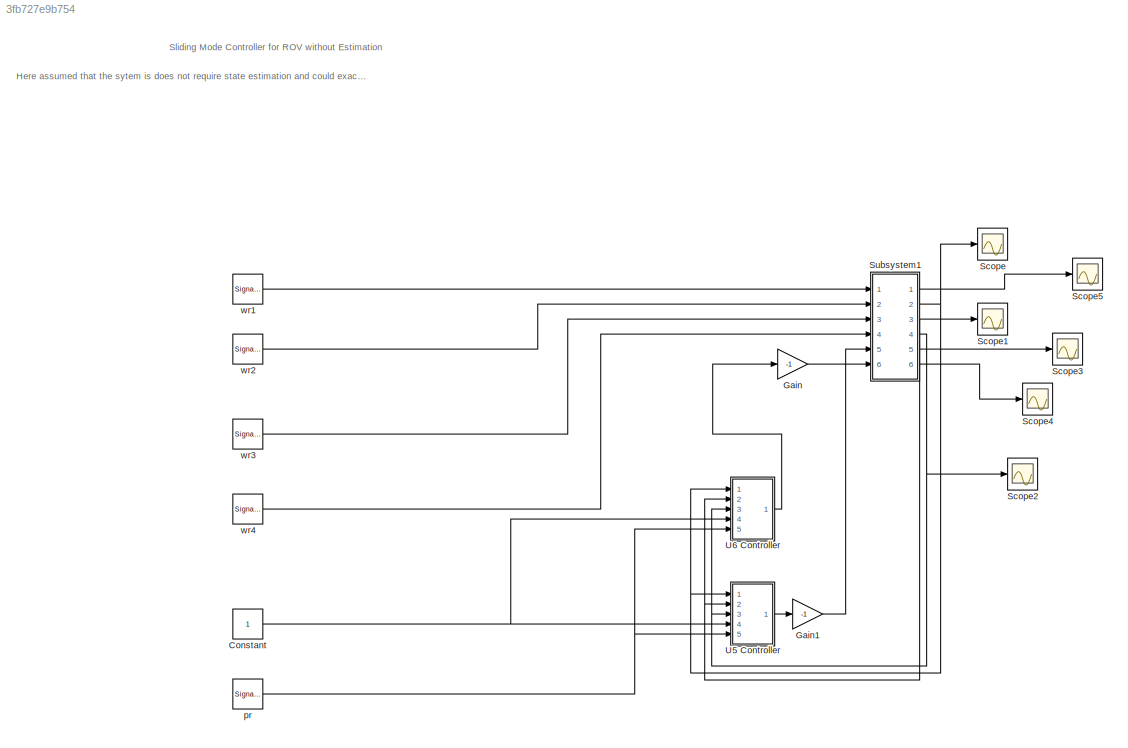
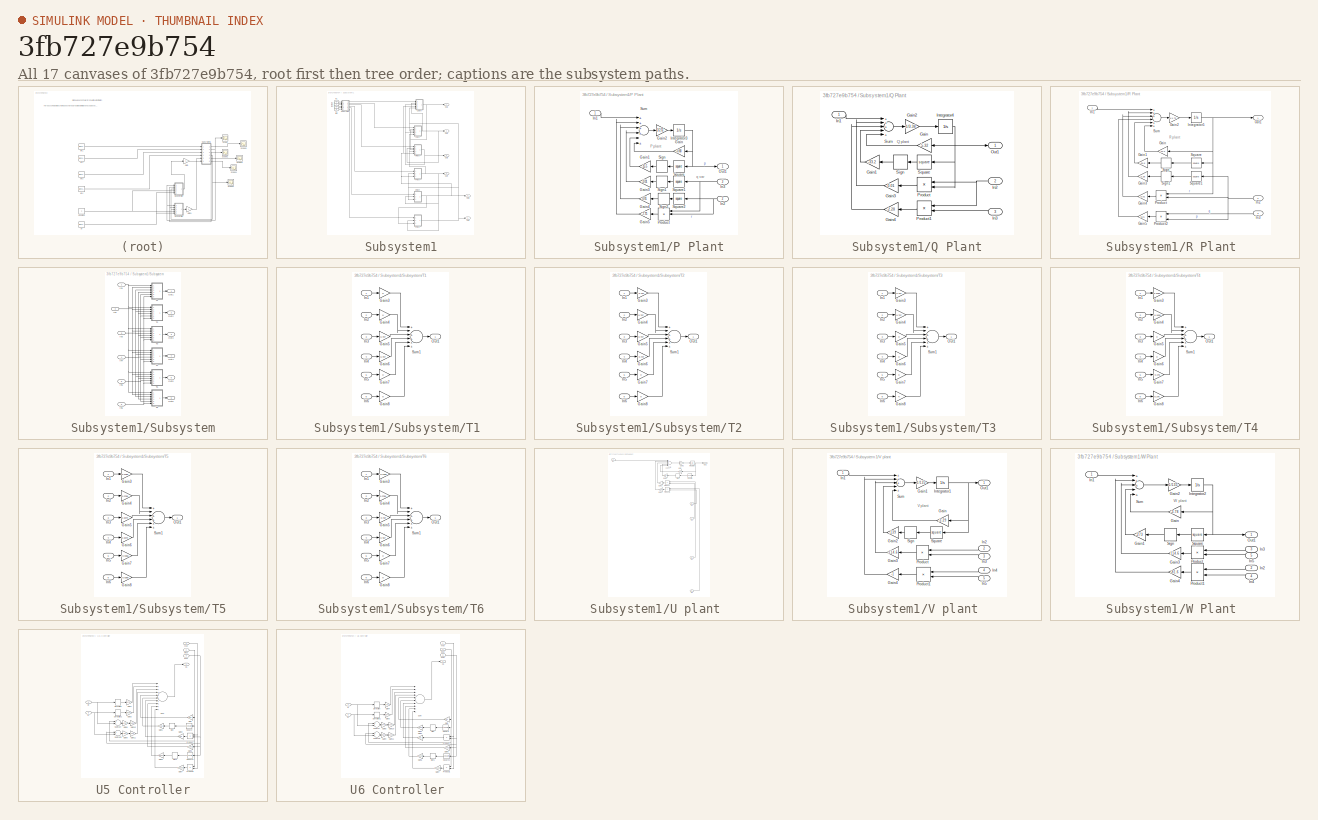
[diagram: thumbnail index - all 17 canvases of the model, root first then tree order]
MODEL slx_3fb727e9b754
KIND model
CONFIG AbsTol = auto
CONFIG EnableMultiTasking = off
CONFIG FixedStep = auto
CONFIG MaxStep = auto
CONFIG MinStep = auto
CONFIG RelTol = 1e-1
CONFIG SampleTimeConstraint = Unconstrained
CONFIG Solver = VariableStepAuto
CONFIG SolverName = VariableStepAuto
CONFIG StartTime = 0.0
CONFIG StopTime = 150
BLOCK [Constant] Constant
BLOCK [Gain] Gain
  Gain = -1
  OutDataTypeStr = Inherit: Inherit via internal rule
  ParamDataTypeStr = Inherit: Inherit via internal rule
  SaturateOnIntegerOverflow = off
BLOCK [Gain] Gain1
  Gain = -1
  OutDataTypeStr = Inherit: Inherit via internal rule
  ParamDataTypeStr = Inherit: Inherit via internal rule
  SaturateOnIntegerOverflow = off
BLOCK [Scope] Scope
  Floating = off
  NumInputPorts = 1
  Ports = [1]
  ScopeSpecificationString = Simulink.scopes.TimeScopeBlockCfg('CurrentConfiguration', extmgr.ConfigurationSet(extmgr.Configuration('Core','General UI',true),extmgr.Configuration('Core','Source UI',true),extmgr.Configuration('Sources','WiredSimulink',true,'DataLoggingVariableName','ScopeData6'),extmgr.Configuration('Visuals','Time Domain',true,'SerializedDisplays',{struct('MinYLimReal','-1.90002','MaxYLimReal','0.73849','YLab...<+1398ch>
BLOCK [Scope] Scope1
  Floating = off
  NumInputPorts = 1
  Ports = [1]
  ScopeSpecificationString = Simulink.scopes.TimeScopeBlockCfg('CurrentConfiguration', extmgr.ConfigurationSet(extmgr.Configuration('Core','General UI',true),extmgr.Configuration('Core','Source UI',true),extmgr.Configuration('Sources','WiredSimulink',true,'DataLoggingVariableName','ScopeData7'),extmgr.Configuration('Visuals','Time Domain',true,'SerializedDisplays',{struct('MinYLimReal','-0.12485','MaxYLimReal','1.12362','YLab...<+1399ch>
BLOCK [Scope] Scope2
  Floating = off
  NumInputPorts = 1
  Ports = [1]
  ScopeSpecificationString = Simulink.scopes.TimeScopeBlockCfg('CurrentConfiguration', extmgr.ConfigurationSet(extmgr.Configuration('Core','General UI',true),extmgr.Configuration('Core','Source UI',true),extmgr.Configuration('Sources','WiredSimulink',true,'DataLoggingVariableName','ScopeData8'),extmgr.Configuration('Visuals','Time Domain',true,'SerializedDisplays',{struct('MinYLimReal','-0.70878','MaxYLimReal','0.08867','YLab...<+1398ch>
BLOCK [Scope] Scope3
  Floating = off
  NumInputPorts = 1
  Ports = [1]
  ScopeSpecificationString = Simulink.scopes.TimeScopeBlockCfg('CurrentConfiguration', extmgr.ConfigurationSet(extmgr.Configuration('Core','General UI',true),extmgr.Configuration('Core','Source UI',true),extmgr.Configuration('Sources','WiredSimulink',true,'DataLoggingVariableName','ScopeData1'),extmgr.Configuration('Visuals','Time Domain',true,'SerializedDisplays',{struct('MinYLimReal','-33.83383','MaxYLimReal','3.75931','YLa...<+1402ch>
BLOCK [Scope] Scope4
  Floating = off
  NumInputPorts = 1
  Ports = [1]
  ScopeSpecificationString = Simulink.scopes.TimeScopeBlockCfg('CurrentConfiguration', extmgr.ConfigurationSet(extmgr.Configuration('Core','General UI',true),extmgr.Configuration('Core','Source UI',true),extmgr.Configuration('Sources','WiredSimulink',true,'DataLoggingVariableName','ScopeData2'),extmgr.Configuration('Visuals','Time Domain',true,'SerializedDisplays',{struct('MinYLimReal','-2.64953','MaxYLimReal','0.29439','YLab...<+1398ch>
BLOCK [Scope] Scope5
  Floating = off
  NumInputPorts = 1
  Ports = [1]
  ScopeSpecificationString = Simulink.scopes.TimeScopeBlockCfg('CurrentConfiguration', extmgr.ConfigurationSet(extmgr.Configuration('Core','General UI',true),extmgr.Configuration('Core','Source UI',true),extmgr.Configuration('Sources','WiredSimulink',true,'DataLoggingVariableName','ScopeData3'),extmgr.Configuration('Visuals','Time Domain',true,'SerializedDisplays',{struct('MinYLimReal','-0.65002','MaxYLimReal','1.6734','YLabe...<+1394ch>
BLOCK [SubSystem] Subsystem1
  Ports = [6, 6]
  RequestExecContextInheritance = off
BLOCK [Inport] Subsystem1/In1
  IconDisplay = Port number
BLOCK [Inport] Subsystem1/In2
  IconDisplay = Port number
  Port = 2
BLOCK [Inport] Subsystem1/In3
  IconDisplay = Port number
  Port = 3
BLOCK [Inport] Subsystem1/In4
  IconDisplay = Port number
  Port = 4
BLOCK [Inport] Subsystem1/In5
  IconDisplay = Port number
  Port = 5
BLOCK [Inport] Subsystem1/In6
  IconDisplay = Port number
  Port = 6
BLOCK [Outport] Subsystem1/Out1
  IconDisplay = Port number
BLOCK [Outport] Subsystem1/Out2
  IconDisplay = Port number
  Port = 2
BLOCK [Outport] Subsystem1/Out3
  IconDisplay = Port number
  Port = 3
BLOCK [Outport] Subsystem1/Out4
  IconDisplay = Port number
  Port = 4
BLOCK [Outport] Subsystem1/Out5
  IconDisplay = Port number
  Port = 5
BLOCK [Outport] Subsystem1/Out6
  IconDisplay = Port number
  Port = 6
BLOCK [SubSystem] Subsystem1/P Plant
  Ports = [3, 1]
  RequestExecContextInheritance = off
BLOCK [Gain] Subsystem1/P Plant/Gain
  Gain = -0.68
  OutDataTypeStr = Inherit: Inherit via internal rule
  ParamDataTypeStr = Inherit: Inherit via internal rule
  SaturateOnIntegerOverflow = off
BLOCK [Gain] Subsystem1/P Plant/Gain1
  Gain = -15.5
  OutDataTypeStr = Inherit: Inherit via internal rule
  ParamDataTypeStr = Inherit: Inherit via internal rule
  SaturateOnIntegerOverflow = off
BLOCK [Gain] Subsystem1/P Plant/Gain2
  Gain = 1/2.51
  OutDataTypeStr = Inherit: Inherit via internal rule
  ParamDataTypeStr = Inherit: Inherit via internal rule
  SaturateOnIntegerOverflow = off
BLOCK [Gain] Subsystem1/P Plant/Gain3
  Gain = -0.01
  OutDataTypeStr = Inherit: Inherit via internal rule
  ParamDataTypeStr = Inherit: Inherit via internal rule
  SaturateOnIntegerOverflow = off
BLOCK [Gain] Subsystem1/P Plant/Gain4
  Gain = 0.01
  OutDataTypeStr = Inherit: Inherit via internal rule
  ParamDataTypeStr = Inherit: Inherit via internal rule
  SaturateOnIntegerOverflow = off
BLOCK [Gain] Subsystem1/P Plant/Gain5
  Gain = -7.75
  OutDataTypeStr = Inherit: Inherit via internal rule
  ParamDataTypeStr = Inherit: Inherit via internal rule
  SaturateOnIntegerOverflow = off
BLOCK [Inport] Subsystem1/P Plant/In1
  IconDisplay = Port number
BLOCK [Inport] Subsystem1/P Plant/In2
  IconDisplay = Port number
  Port = 2
BLOCK [Inport] Subsystem1/P Plant/In3 
  IconDisplay = Port number
  Port = 3
BLOCK [Integrator] Subsystem1/P Plant/Integrator3
  Ports = [1, 1]
BLOCK [Outport] Subsystem1/P Plant/Out1
  IconDisplay = Port number
BLOCK [Product] Subsystem1/P Plant/Product
  InputSameDT = off
  Inputs = 3
  OutDataTypeStr = Inherit: Inherit via internal rule
  Ports = [3, 1]
  RndMeth = Floor
  SaturateOnIntegerOverflow = off
BLOCK [Signum] Subsystem1/P Plant/Sign
BLOCK [Signum] Subsystem1/P Plant/Sign1
BLOCK [Signum] Subsystem1/P Plant/Sign2
BLOCK [Math] Subsystem1/P Plant/Square
  Operator = square
  Ports = [1, 1]
BLOCK [Math] Subsystem1/P Plant/Square1
  Operator = square
  Ports = [1, 1]
BLOCK [Math] Subsystem1/P Plant/Square2
  Operator = square
  Ports = [1, 1]
BLOCK [Sum] Subsystem1/P Plant/Sum
  InputSameDT = off
  Inputs = ++++|++
  OutDataTypeStr = Inherit: Inherit via internal rule
  Ports = [6, 1]
  SaturateOnIntegerOverflow = off
BLOCK [SubSystem] Subsystem1/Q Plant
  Ports = [3, 1]
  RequestExecContextInheritance = off
BLOCK [Gain] Subsystem1/Q Plant/Gain
  Gain = -5.32
  OutDataTypeStr = Inherit: Inherit via internal rule
  ParamDataTypeStr = Inherit: Inherit via internal rule
  SaturateOnIntegerOverflow = off
BLOCK [Gain] Subsystem1/Q Plant/Gain1
  Gain = -33.2
  OutDataTypeStr = Inherit: Inherit via internal rule
  ParamDataTypeStr = Inherit: Inherit via internal rule
  SaturateOnIntegerOverflow = off
BLOCK [Gain] Subsystem1/Q Plant/Gain2
  Gain = 1/3.38
  OutDataTypeStr = Inherit: Inherit via internal rule
  ParamDataTypeStr = Inherit: Inherit via internal rule
  SaturateOnIntegerOverflow = off
BLOCK [Gain] Subsystem1/Q Plant/Gain3
  Gain = 0.01
  OutDataTypeStr = Inherit: Inherit via internal rule
  ParamDataTypeStr = Inherit: Inherit via internal rule
  SaturateOnIntegerOverflow = off
BLOCK [Gain] Subsystem1/Q Plant/Gain4
  Gain = -2.28
  OutDataTypeStr = Inherit: Inherit via internal rule
  ParamDataTypeStr = Inherit: Inherit via internal rule
  SaturateOnIntegerOverflow = off
BLOCK [Inport] Subsystem1/Q Plant/In1
  IconDisplay = Port number
BLOCK [Inport] Subsystem1/Q Plant/In2
  IconDisplay = Port number
  Port = 2
BLOCK [Inport] Subsystem1/Q Plant/In3
  IconDisplay = Port number
  Port = 3
BLOCK [Integrator] Subsystem1/Q Plant/Integrator4
  Ports = [1, 1]
BLOCK [Outport] Subsystem1/Q Plant/Out1
  IconDisplay = Port number
BLOCK [Product] Subsystem1/Q Plant/Product
  InputSameDT = off
  OutDataTypeStr = Inherit: Inherit via internal rule
  Ports = [2, 1]
  RndMeth = Floor
  SaturateOnIntegerOverflow = off
BLOCK [Product] Subsystem1/Q Plant/Product1
  InputSameDT = off
  OutDataTypeStr = Inherit: Inherit via internal rule
  Ports = [2, 1]
  RndMeth = Floor
  SaturateOnIntegerOverflow = off
BLOCK [Signum] Subsystem1/Q Plant/Sign
BLOCK [Math] Subsystem1/Q Plant/Square
  Operator = square
  Ports = [1, 1]
BLOCK [Sum] Subsystem1/Q Plant/Sum
  InputSameDT = off
  Inputs = +++|++
  OutDataTypeStr = Inherit: Inherit via internal rule
  Ports = [5, 1]
  SaturateOnIntegerOverflow = off
BLOCK [SubSystem] Subsystem1/R Plant 
  Ports = [3, 1]
  RequestExecContextInheritance = off
BLOCK [Gain] Subsystem1/R Plant /Gain
  Gain = -24.2
  OutDataTypeStr = Inherit: Inherit via internal rule
  ParamDataTypeStr = Inherit: Inherit via internal rule
  SaturateOnIntegerOverflow = off
BLOCK [Gain] Subsystem1/R Plant /Gain1
  Gain = -53.6
  OutDataTypeStr = Inherit: Inherit via internal rule
  ParamDataTypeStr = Inherit: Inherit via internal rule
  SaturateOnIntegerOverflow = off
BLOCK [Gain] Subsystem1/R Plant /Gain2
  Gain = 1/1.73
  OutDataTypeStr = Inherit: Inherit via internal rule
  ParamDataTypeStr = Inherit: Inherit via internal rule
  SaturateOnIntegerOverflow = off
BLOCK [Gain] Subsystem1/R Plant /Gain3
  Gain = -3.38
  OutDataTypeStr = Inherit: Inherit via internal rule
  ParamDataTypeStr = Inherit: Inherit via internal rule
  SaturateOnIntegerOverflow = off
BLOCK [Gain] Subsystem1/R Plant /Gain4
  Gain = -0.01
  OutDataTypeStr = Inherit: Inherit via internal rule
  ParamDataTypeStr = Inherit: Inherit via internal rule
  SaturateOnIntegerOverflow = off
BLOCK [Gain] Subsystem1/R Plant /Gain5
  Gain = 13.5
  OutDataTypeStr = Inherit: Inherit via internal rule
  ParamDataTypeStr = Inherit: Inherit via internal rule
  SaturateOnIntegerOverflow = off
BLOCK [Inport] Subsystem1/R Plant /In1
  IconDisplay = Port number
BLOCK [Inport] Subsystem1/R Plant /In2
  IconDisplay = Port number
  Port = 2
BLOCK [Inport] Subsystem1/R Plant /In3
  IconDisplay = Port number
  Port = 3
BLOCK [Integrator] Subsystem1/R Plant /Integrator5
  Ports = [1, 1]
BLOCK [Outport] Subsystem1/R Plant /Out1
  IconDisplay = Port number
BLOCK [Product] Subsystem1/R Plant /Product
  InputSameDT = off
  OutDataTypeStr = Inherit: Inherit via internal rule
  Ports = [2, 1]
  RndMeth = Floor
  SaturateOnIntegerOverflow = off
BLOCK [Product] Subsystem1/R Plant /Product2
  InputSameDT = off
  Inputs = 3
  OutDataTypeStr = Inherit: Inherit via internal rule
  Ports = [3, 1]
  RndMeth = Floor
  SaturateOnIntegerOverflow = off
BLOCK [Signum] Subsystem1/R Plant /Sign
BLOCK [Signum] Subsystem1/R Plant /Sign1
BLOCK [Math] Subsystem1/R Plant /Square
  Operator = square
  Ports = [1, 1]
BLOCK [Math] Subsystem1/R Plant /Square1
  Operator = square
  Ports = [1, 1]
BLOCK [Sum] Subsystem1/R Plant /Sum
  InputSameDT = off
  Inputs = +++|+++
  OutDataTypeStr = Inherit: Inherit via internal rule
  Ports = [6, 1]
  SaturateOnIntegerOverflow = off
BLOCK [SubSystem] Subsystem1/Subsystem
  Ports = [6, 6]
  RequestExecContextInheritance = off
BLOCK [Inport] Subsystem1/Subsystem/In1
  IconDisplay = Port number
BLOCK [Inport] Subsystem1/Subsystem/In2
  IconDisplay = Port number
  Port = 2
BLOCK [Inport] Subsystem1/Subsystem/In3
  IconDisplay = Port number
  Port = 3
BLOCK [Inport] Subsystem1/Subsystem/In4
  IconDisplay = Port number
  Port = 4
BLOCK [Inport] Subsystem1/Subsystem/In5
  IconDisplay = Port number
  Port = 5
BLOCK [Inport] Subsystem1/Subsystem/In6
  IconDisplay = Port number
  Port = 6
BLOCK [Outport] Subsystem1/Subsystem/Out1
  IconDisplay = Port number
BLOCK [Outport] Subsystem1/Subsystem/Out2
  IconDisplay = Port number
  Port = 2
BLOCK [Outport] Subsystem1/Subsystem/Out3
  IconDisplay = Port number
  Port = 3
BLOCK [Outport] Subsystem1/Subsystem/Out4
  IconDisplay = Port number
  Port = 4
BLOCK [Outport] Subsystem1/Subsystem/Out5
  IconDisplay = Port number
  Port = 5
BLOCK [Outport] Subsystem1/Subsystem/Out6
  IconDisplay = Port number
  Port = 6
BLOCK [SubSystem] Subsystem1/Subsystem/T1 
  Ports = [6, 1]
  RequestExecContextInheritance = off
BLOCK [Gain] Subsystem1/Subsystem/T1 /Gain3
  Gain = 0
  OutDataTypeStr = Inherit: Inherit via internal rule
  ParamDataTypeStr = Inherit: Inherit via internal rule
  SaturateOnIntegerOverflow = off
BLOCK [Gain] Subsystem1/Subsystem/T1 /Gain4
  Gain = 0
  OutDataTypeStr = Inherit: Inherit via internal rule
  ParamDataTypeStr = Inherit: Inherit via internal rule
  SaturateOnIntegerOverflow = off
BLOCK [Gain] Subsystem1/Subsystem/T1 /Gain5
  Gain = 0.707
  OutDataTypeStr = Inherit: Inherit via internal rule
  ParamDataTypeStr = Inherit: Inherit via internal rule
  SaturateOnIntegerOverflow = off
BLOCK [Gain] Subsystem1/Subsystem/T1 /Gain6
  Gain = 0.707
  OutDataTypeStr = Inherit: Inherit via internal rule
  ParamDataTypeStr = Inherit: Inherit via internal rule
  SaturateOnIntegerOverflow = off
BLOCK [Gain] Subsystem1/Subsystem/T1 /Gain7
  Gain = 0
  OutDataTypeStr = Inherit: Inherit via internal rule
  ParamDataTypeStr = Inherit: Inherit via internal rule
  SaturateOnIntegerOverflow = off
BLOCK [Gain] Subsystem1/Subsystem/T1 /Gain8
  Gain = 0
  OutDataTypeStr = Inherit: Inherit via internal rule
  ParamDataTypeStr = Inherit: Inherit via internal rule
  SaturateOnIntegerOverflow = off
BLOCK [Inport] Subsystem1/Subsystem/T1 /In1
  IconDisplay = Port number
BLOCK [Inport] Subsystem1/Subsystem/T1 /In2
  IconDisplay = Port number
  Port = 2
BLOCK [Inport] Subsystem1/Subsystem/T1 /In3
  IconDisplay = Port number
  Port = 3
BLOCK [Inport] Subsystem1/Subsystem/T1 /In4
  IconDisplay = Port number
  Port = 4
BLOCK [Inport] Subsystem1/Subsystem/T1 /In5
  IconDisplay = Port number
  Port = 5
BLOCK [Inport] Subsystem1/Subsystem/T1 /In6
  IconDisplay = Port number
  Port = 6
BLOCK [Outport] Subsystem1/Subsystem/T1 /Out1
  IconDisplay = Port number
BLOCK [Sum] Subsystem1/Subsystem/T1 /Sum1
  InputSameDT = off
  Inputs = +|+++++
  OutDataTypeStr = Inherit: Inherit via internal rule
  Ports = [6, 1]
  SaturateOnIntegerOverflow = off
BLOCK [SubSystem] Subsystem1/Subsystem/T2
  Ports = [6, 1]
  RequestExecContextInheritance = off
BLOCK [Gain] Subsystem1/Subsystem/T2/Gain3
  Gain = -0.707
  OutDataTypeStr = Inherit: Inherit via internal rule
  ParamDataTypeStr = Inherit: Inherit via internal rule
  SaturateOnIntegerOverflow = off
BLOCK [Gain] Subsystem1/Subsystem/T2/Gain4
  Gain = 0.707
  OutDataTypeStr = Inherit: Inherit via internal rule
  ParamDataTypeStr = Inherit: Inherit via internal rule
  SaturateOnIntegerOverflow = off
BLOCK [Gain] Subsystem1/Subsystem/T2/Gain5
  Gain = 0.707
  OutDataTypeStr = Inherit: Inherit via internal rule
  ParamDataTypeStr = Inherit: Inherit via internal rule
  SaturateOnIntegerOverflow = off
BLOCK [Gain] Subsystem1/Subsystem/T2/Gain6
  Gain = -0.707
  OutDataTypeStr = Inherit: Inherit via internal rule
  ParamDataTypeStr = Inherit: Inherit via internal rule
  SaturateOnIntegerOverflow = off
BLOCK [Gain] Subsystem1/Subsystem/T2/Gain7
  Gain = 0
  OutDataTypeStr = Inherit: Inherit via internal rule
  ParamDataTypeStr = Inherit: Inherit via internal rule
  SaturateOnIntegerOverflow = off
BLOCK [Gain] Subsystem1/Subsystem/T2/Gain8
  Gain = 0
  OutDataTypeStr = Inherit: Inherit via internal rule
  ParamDataTypeStr = Inherit: Inherit via internal rule
  SaturateOnIntegerOverflow = off
BLOCK [Inport] Subsystem1/Subsystem/T2/In1
  IconDisplay = Port number
BLOCK [Inport] Subsystem1/Subsystem/T2/In2
  IconDisplay = Port number
  Port = 2
BLOCK [Inport] Subsystem1/Subsystem/T2/In3
  IconDisplay = Port number
  Port = 3
BLOCK [Inport] Subsystem1/Subsystem/T2/In4
  IconDisplay = Port number
  Port = 4
BLOCK [Inport] Subsystem1/Subsystem/T2/In5
  IconDisplay = Port number
  Port = 5
BLOCK [Inport] Subsystem1/Subsystem/T2/In6
  IconDisplay = Port number
  Port = 6
BLOCK [Outport] Subsystem1/Subsystem/T2/Out1
  IconDisplay = Port number
BLOCK [Sum] Subsystem1/Subsystem/T2/Sum1
  InputSameDT = off
  Inputs = +|+++++
  OutDataTypeStr = Inherit: Inherit via internal rule
  Ports = [6, 1]
  SaturateOnIntegerOverflow = off
BLOCK [SubSystem] Subsystem1/Subsystem/T3 
  Ports = [6, 1]
  RequestExecContextInheritance = off
BLOCK [Gain] Subsystem1/Subsystem/T3 /Gain3
  Gain = 0.707
  OutDataTypeStr = Inherit: Inherit via internal rule
  ParamDataTypeStr = Inherit: Inherit via internal rule
  SaturateOnIntegerOverflow = off
BLOCK [Gain] Subsystem1/Subsystem/T3 /Gain4
  Gain = 0.707
  OutDataTypeStr = Inherit: Inherit via internal rule
  ParamDataTypeStr = Inherit: Inherit via internal rule
  SaturateOnIntegerOverflow = off
BLOCK [Gain] Subsystem1/Subsystem/T3 /Gain5
  Gain = 0
  OutDataTypeStr = Inherit: Inherit via internal rule
  ParamDataTypeStr = Inherit: Inherit via internal rule
  SaturateOnIntegerOverflow = off
BLOCK [Gain] Subsystem1/Subsystem/T3 /Gain6
  Gain = 0
  OutDataTypeStr = Inherit: Inherit via internal rule
  ParamDataTypeStr = Inherit: Inherit via internal rule
  SaturateOnIntegerOverflow = off
BLOCK [Gain] Subsystem1/Subsystem/T3 /Gain7
  OutDataTypeStr = Inherit: Inherit via internal rule
  ParamDataTypeStr = Inherit: Inherit via internal rule
  SaturateOnIntegerOverflow = off
BLOCK [Gain] Subsystem1/Subsystem/T3 /Gain8
  OutDataTypeStr = Inherit: Inherit via internal rule
  ParamDataTypeStr = Inherit: Inherit via internal rule
  SaturateOnIntegerOverflow = off
BLOCK [Inport] Subsystem1/Subsystem/T3 /In1
  IconDisplay = Port number
BLOCK [Inport] Subsystem1/Subsystem/T3 /In2
  IconDisplay = Port number
  Port = 2
BLOCK [Inport] Subsystem1/Subsystem/T3 /In3
  IconDisplay = Port number
  Port = 3
BLOCK [Inport] Subsystem1/Subsystem/T3 /In4
  IconDisplay = Port number
  Port = 4
BLOCK [Inport] Subsystem1/Subsystem/T3 /In5
  IconDisplay = Port number
  Port = 5
BLOCK [Inport] Subsystem1/Subsystem/T3 /In6
  IconDisplay = Port number
  Port = 6
BLOCK [Outport] Subsystem1/Subsystem/T3 /Out1
  IconDisplay = Port number
BLOCK [Sum] Subsystem1/Subsystem/T3 /Sum1
  InputSameDT = off
  Inputs = +|+++++
  OutDataTypeStr = Inherit: Inherit via internal rule
  Ports = [6, 1]
  SaturateOnIntegerOverflow = off
BLOCK [SubSystem] Subsystem1/Subsystem/T4
  Ports = [6, 1]
  RequestExecContextInheritance = off
BLOCK [Gain] Subsystem1/Subsystem/T4/Gain3
  Gain = 0.1099
  OutDataTypeStr = Inherit: Inherit via internal rule
  ParamDataTypeStr = Inherit: Inherit via internal rule
  SaturateOnIntegerOverflow = off
BLOCK [Gain] Subsystem1/Subsystem/T4/Gain4
  Gain = -0.1099
  OutDataTypeStr = Inherit: Inherit via internal rule
  ParamDataTypeStr = Inherit: Inherit via internal rule
  SaturateOnIntegerOverflow = off
BLOCK [Gain] Subsystem1/Subsystem/T4/Gain5
  Gain = 0
  OutDataTypeStr = Inherit: Inherit via internal rule
  ParamDataTypeStr = Inherit: Inherit via internal rule
  SaturateOnIntegerOverflow = off
BLOCK [Gain] Subsystem1/Subsystem/T4/Gain6
  Gain = 0
  OutDataTypeStr = Inherit: Inherit via internal rule
  ParamDataTypeStr = Inherit: Inherit via internal rule
  SaturateOnIntegerOverflow = off
BLOCK [Gain] Subsystem1/Subsystem/T4/Gain7
  Gain = -0.275
  OutDataTypeStr = Inherit: Inherit via internal rule
  ParamDataTypeStr = Inherit: Inherit via internal rule
  SaturateOnIntegerOverflow = off
BLOCK [Gain] Subsystem1/Subsystem/T4/Gain8
  Gain = 0.275
  OutDataTypeStr = Inherit: Inherit via internal rule
  ParamDataTypeStr = Inherit: Inherit via internal rule
  SaturateOnIntegerOverflow = off
BLOCK [Inport] Subsystem1/Subsystem/T4/In1
  IconDisplay = Port number
BLOCK [Inport] Subsystem1/Subsystem/T4/In2
  IconDisplay = Port number
  Port = 2
BLOCK [Inport] Subsystem1/Subsystem/T4/In3
  IconDisplay = Port number
  Port = 3
BLOCK [Inport] Subsystem1/Subsystem/T4/In4
  IconDisplay = Port number
  Port = 4
BLOCK [Inport] Subsystem1/Subsystem/T4/In5
  IconDisplay = Port number
  Port = 5
BLOCK [Inport] Subsystem1/Subsystem/T4/In6
  IconDisplay = Port number
  Port = 6
BLOCK [Outport] Subsystem1/Subsystem/T4/Out1
  IconDisplay = Port number
BLOCK [Sum] Subsystem1/Subsystem/T4/Sum1
  InputSameDT = off
  Inputs = +|+++++
  OutDataTypeStr = Inherit: Inherit via internal rule
  Ports = [6, 1]
  SaturateOnIntegerOverflow = off
BLOCK [SubSystem] Subsystem1/Subsystem/T5
  Ports = [6, 1]
  RequestExecContextInheritance = off
BLOCK [Gain] Subsystem1/Subsystem/T5/Gain3
  Gain = 0.2789
  OutDataTypeStr = Inherit: Inherit via internal rule
  ParamDataTypeStr = Inherit: Inherit via internal rule
  SaturateOnIntegerOverflow = off
BLOCK [Gain] Subsystem1/Subsystem/T5/Gain4
  Gain = 0.2789
  OutDataTypeStr = Inherit: Inherit via internal rule
  ParamDataTypeStr = Inherit: Inherit via internal rule
  SaturateOnIntegerOverflow = off
BLOCK [Gain] Subsystem1/Subsystem/T5/Gain5
  Gain = 0.3044
  OutDataTypeStr = Inherit: Inherit via internal rule
  ParamDataTypeStr = Inherit: Inherit via internal rule
  SaturateOnIntegerOverflow = off
BLOCK [Gain] Subsystem1/Subsystem/T5/Gain6
  Gain = 0.3044
  OutDataTypeStr = Inherit: Inherit via internal rule
  ParamDataTypeStr = Inherit: Inherit via internal rule
  SaturateOnIntegerOverflow = off
BLOCK [Gain] Subsystem1/Subsystem/T5/Gain7
  Gain = -0.0355
  OutDataTypeStr = Inherit: Inherit via internal rule
  ParamDataTypeStr = Inherit: Inherit via internal rule
  SaturateOnIntegerOverflow = off
BLOCK [Gain] Subsystem1/Subsystem/T5/Gain8
  Gain = -0.0355
  OutDataTypeStr = Inherit: Inherit via internal rule
  ParamDataTypeStr = Inherit: Inherit via internal rule
  SaturateOnIntegerOverflow = off
BLOCK [Inport] Subsystem1/Subsystem/T5/In1
  IconDisplay = Port number
BLOCK [Inport] Subsystem1/Subsystem/T5/In2
  IconDisplay = Port number
  Port = 2
BLOCK [Inport] Subsystem1/Subsystem/T5/In3
  IconDisplay = Port number
  Port = 3
BLOCK [Inport] Subsystem1/Subsystem/T5/In4
  IconDisplay = Port number
  Port = 4
BLOCK [Inport] Subsystem1/Subsystem/T5/In5
  IconDisplay = Port number
  Port = 5
BLOCK [Inport] Subsystem1/Subsystem/T5/In6
  IconDisplay = Port number
  Port = 6
BLOCK [Outport] Subsystem1/Subsystem/T5/Out1
  IconDisplay = Port number
BLOCK [Sum] Subsystem1/Subsystem/T5/Sum1
  InputSameDT = off
  Inputs = +|+++++
  OutDataTypeStr = Inherit: Inherit via internal rule
  Ports = [6, 1]
  SaturateOnIntegerOverflow = off
BLOCK [SubSystem] Subsystem1/Subsystem/T6
  Ports = [6, 1]
  RequestExecContextInheritance = off
BLOCK [Gain] Subsystem1/Subsystem/T6/Gain3
  Gain = -0.2789
  OutDataTypeStr = Inherit: Inherit via internal rule
  ParamDataTypeStr = Inherit: Inherit via internal rule
  SaturateOnIntegerOverflow = off
BLOCK [Gain] Subsystem1/Subsystem/T6/Gain4
  Gain = 0.2789
  OutDataTypeStr = Inherit: Inherit via internal rule
  ParamDataTypeStr = Inherit: Inherit via internal rule
  SaturateOnIntegerOverflow = off
BLOCK [Gain] Subsystem1/Subsystem/T6/Gain5
  Gain = -0.467
  OutDataTypeStr = Inherit: Inherit via internal rule
  ParamDataTypeStr = Inherit: Inherit via internal rule
  SaturateOnIntegerOverflow = off
BLOCK [Gain] Subsystem1/Subsystem/T6/Gain6
  Gain = 0.467
  OutDataTypeStr = Inherit: Inherit via internal rule
  ParamDataTypeStr = Inherit: Inherit via internal rule
  SaturateOnIntegerOverflow = off
BLOCK [Gain] Subsystem1/Subsystem/T6/Gain7
  Gain = 0
  OutDataTypeStr = Inherit: Inherit via internal rule
  ParamDataTypeStr = Inherit: Inherit via internal rule
  SaturateOnIntegerOverflow = off
BLOCK [Gain] Subsystem1/Subsystem/T6/Gain8
  Gain = 0
  OutDataTypeStr = Inherit: Inherit via internal rule
  ParamDataTypeStr = Inherit: Inherit via internal rule
  SaturateOnIntegerOverflow = off
BLOCK [Inport] Subsystem1/Subsystem/T6/In1
  IconDisplay = Port number
BLOCK [Inport] Subsystem1/Subsystem/T6/In2
  IconDisplay = Port number
  Port = 2
BLOCK [Inport] Subsystem1/Subsystem/T6/In3
  IconDisplay = Port number
  Port = 3
BLOCK [Inport] Subsystem1/Subsystem/T6/In4
  IconDisplay = Port number
  Port = 4
BLOCK [Inport] Subsystem1/Subsystem/T6/In5
  IconDisplay = Port number
  Port = 5
BLOCK [Inport] Subsystem1/Subsystem/T6/In6
  IconDisplay = Port number
  Port = 6
BLOCK [Outport] Subsystem1/Subsystem/T6/Out1
  IconDisplay = Port number
BLOCK [Sum] Subsystem1/Subsystem/T6/Sum1
  InputSameDT = off
  Inputs = +|+++++
  OutDataTypeStr = Inherit: Inherit via internal rule
  Ports = [6, 1]
  SaturateOnIntegerOverflow = off
BLOCK [SubSystem] Subsystem1/U plant 
  Ports = [5, 1]
  RequestExecContextInheritance = off
BLOCK [Gain] Subsystem1/U plant /Gain
  Gain = -3.22
  OutDataTypeStr = Inherit: Inherit via internal rule
  ParamDataTypeStr = Inherit: Inherit via internal rule
  SaturateOnIntegerOverflow = off
BLOCK [Gain] Subsystem1/U plant /Gain1
  Gain = -105
  OutDataTypeStr = Inherit: Inherit via internal rule
  ParamDataTypeStr = Inherit: Inherit via internal rule
  SaturateOnIntegerOverflow = off
BLOCK [Gain] Subsystem1/U plant /Gain2
  Gain = 1/135
  OutDataTypeStr = Inherit: Inherit via internal rule
  ParamDataTypeStr = Inherit: Inherit via internal rule
  SaturateOnIntegerOverflow = off
BLOCK [Gain] Subsystem1/U plant /Gain3
  OutDataTypeStr = Inherit: Inherit via internal rule
  ParamDataTypeStr = Inherit: Inherit via internal rule
  SaturateOnIntegerOverflow = off
BLOCK [Gain] Subsystem1/U plant /Gain4
  Gain = 81.6
  OutDataTypeStr = Inherit: Inherit via internal rule
  ParamDataTypeStr = Inherit: Inherit via internal rule
  SaturateOnIntegerOverflow = off
BLOCK [Inport] Subsystem1/U plant /In1
  IconDisplay = Port number
BLOCK [Inport] Subsystem1/U plant /In2
  IconDisplay = Port number
  Port = 2
BLOCK [Inport] Subsystem1/U plant /In3
  IconDisplay = Port number
  Port = 3
BLOCK [Inport] Subsystem1/U plant /In4
  IconDisplay = Port number
  Port = 4
BLOCK [Inport] Subsystem1/U plant /In5
  IconDisplay = Port number
  Port = 5
BLOCK [Integrator] Subsystem1/U plant /Integrator
  Ports = [1, 1]
BLOCK [Outport] Subsystem1/U plant /Out1
  IconDisplay = Port number
BLOCK [Product] Subsystem1/U plant /Product
  InputSameDT = off
  OutDataTypeStr = Inherit: Inherit via internal rule
  Ports = [2, 1]
  RndMeth = Floor
  SaturateOnIntegerOverflow = off
BLOCK [Product] Subsystem1/U plant /Product1
  InputSameDT = off
  OutDataTypeStr = Inherit: Inherit via internal rule
  Ports = [2, 1]
  RndMeth = Floor
  SaturateOnIntegerOverflow = off
BLOCK [Signum] Subsystem1/U plant /Sign
BLOCK [Math] Subsystem1/U plant /Square
  Operator = square
  Ports = [1, 1]
BLOCK [Sum] Subsystem1/U plant /Sum
  InputSameDT = off
  Inputs = ++|+++
  OutDataTypeStr = Inherit: Inherit via internal rule
  Ports = [5, 1]
  SaturateOnIntegerOverflow = off
BLOCK [SubSystem] Subsystem1/V plant 
  Ports = [5, 1]
  RequestExecContextInheritance = off
BLOCK [Gain] Subsystem1/V plant /Gain
  Gain = -3.29
  OutDataTypeStr = Inherit: Inherit via internal rule
  ParamDataTypeStr = Inherit: Inherit via internal rule
  SaturateOnIntegerOverflow = off
BLOCK [Gain] Subsystem1/V plant /Gain1
  Gain = 1/135
  OutDataTypeStr = Inherit: Inherit via internal rule
  ParamDataTypeStr = Inherit: Inherit via internal rule
  SaturateOnIntegerOverflow = off
BLOCK [Gain] Subsystem1/V plant /Gain2
  Gain = -139
  OutDataTypeStr = Inherit: Inherit via internal rule
  ParamDataTypeStr = Inherit: Inherit via internal rule
  SaturateOnIntegerOverflow = off
BLOCK [Gain] Subsystem1/V plant /Gain3
  Gain = -114.6
  OutDataTypeStr = Inherit: Inherit via internal rule
  ParamDataTypeStr = Inherit: Inherit via internal rule
  SaturateOnIntegerOverflow = off
BLOCK [Gain] Subsystem1/V plant /Gain4
  Gain = -1
  OutDataTypeStr = Inherit: Inherit via internal rule
  ParamDataTypeStr = Inherit: Inherit via internal rule
  SaturateOnIntegerOverflow = off
BLOCK [Inport] Subsystem1/V plant /In1
  IconDisplay = Port number
BLOCK [Inport] Subsystem1/V plant /In2
  IconDisplay = Port number
  Port = 2
BLOCK [Inport] Subsystem1/V plant /In3
  IconDisplay = Port number
  Port = 3
BLOCK [Inport] Subsystem1/V plant /In4
  IconDisplay = Port number
  Port = 4
BLOCK [Inport] Subsystem1/V plant /In5
  IconDisplay = Port number
  Port = 5
BLOCK [Integrator] Subsystem1/V plant /Integrator1
  Ports = [1, 1]
BLOCK [Outport] Subsystem1/V plant /Out1
  IconDisplay = Port number
BLOCK [Product] Subsystem1/V plant /Product
  InputSameDT = off
  OutDataTypeStr = Inherit: Inherit via internal rule
  Ports = [2, 1]
  RndMeth = Floor
  SaturateOnIntegerOverflow = off
BLOCK [Product] Subsystem1/V plant /Product1
  InputSameDT = off
  OutDataTypeStr = Inherit: Inherit via internal rule
  Ports = [2, 1]
  RndMeth = Floor
  SaturateOnIntegerOverflow = off
BLOCK [Signum] Subsystem1/V plant /Sign
BLOCK [Math] Subsystem1/V plant /Square
  Operator = square
  Ports = [1, 1]
BLOCK [Sum] Subsystem1/V plant /Sum
  InputSameDT = off
  Inputs = +++|++
  OutDataTypeStr = Inherit: Inherit via internal rule
  Ports = [5, 1]
  SaturateOnIntegerOverflow = off
BLOCK [SubSystem] Subsystem1/W Plant 
  Ports = [5, 1]
  RequestExecContextInheritance = off
BLOCK [Gain] Subsystem1/W Plant /Gain
  Gain = -3.78
  OutDataTypeStr = Inherit: Inherit via internal rule
  ParamDataTypeStr = Inherit: Inherit via internal rule
  SaturateOnIntegerOverflow = off
BLOCK [Gain] Subsystem1/W Plant /Gain1
  Gain = -273
  OutDataTypeStr = Inherit: Inherit via internal rule
  ParamDataTypeStr = Inherit: Inherit via internal rule
  SaturateOnIntegerOverflow = off
BLOCK [Gain] Subsystem1/W Plant /Gain2
  Gain = 1/135
  OutDataTypeStr = Inherit: Inherit via internal rule
  ParamDataTypeStr = Inherit: Inherit via internal rule
  SaturateOnIntegerOverflow = off
BLOCK [Gain] Subsystem1/W Plant /Gain3
  Gain = 114.6
  OutDataTypeStr = Inherit: Inherit via internal rule
  ParamDataTypeStr = Inherit: Inherit via internal rule
  SaturateOnIntegerOverflow = off
BLOCK [Gain] Subsystem1/W Plant /Gain4
  Gain = -81.6
  OutDataTypeStr = Inherit: Inherit via internal rule
  ParamDataTypeStr = Inherit: Inherit via internal rule
  SaturateOnIntegerOverflow = off
BLOCK [Inport] Subsystem1/W Plant /In1
  IconDisplay = Port number
BLOCK [Inport] Subsystem1/W Plant /In2
  IconDisplay = Port number
  Port = 2
BLOCK [Inport] Subsystem1/W Plant /In3
  IconDisplay = Port number
  Port = 3
BLOCK [Inport] Subsystem1/W Plant /In4
  IconDisplay = Port number
  Port = 4
BLOCK [Inport] Subsystem1/W Plant /In5
  IconDisplay = Port number
  Port = 5
BLOCK [Integrator] Subsystem1/W Plant /Integrator2
  Ports = [1, 1]
BLOCK [Outport] Subsystem1/W Plant /Out1
  IconDisplay = Port number
BLOCK [Product] Subsystem1/W Plant /Product
  InputSameDT = off
  OutDataTypeStr = Inherit: Inherit via internal rule
  Ports = [2, 1]
  RndMeth = Floor
  SaturateOnIntegerOverflow = off
BLOCK [Product] Subsystem1/W Plant /Product1
  InputSameDT = off
  OutDataTypeStr = Inherit: Inherit via internal rule
  Ports = [2, 1]
  RndMeth = Floor
  SaturateOnIntegerOverflow = off
BLOCK [Signum] Subsystem1/W Plant /Sign
BLOCK [Math] Subsystem1/W Plant /Square
  Operator = square
  Ports = [1, 1]
BLOCK [Sum] Subsystem1/W Plant /Sum
  InputSameDT = off
  Inputs = +++|++
  OutDataTypeStr = Inherit: Inherit via internal rule
  Ports = [5, 1]
  SaturateOnIntegerOverflow = off
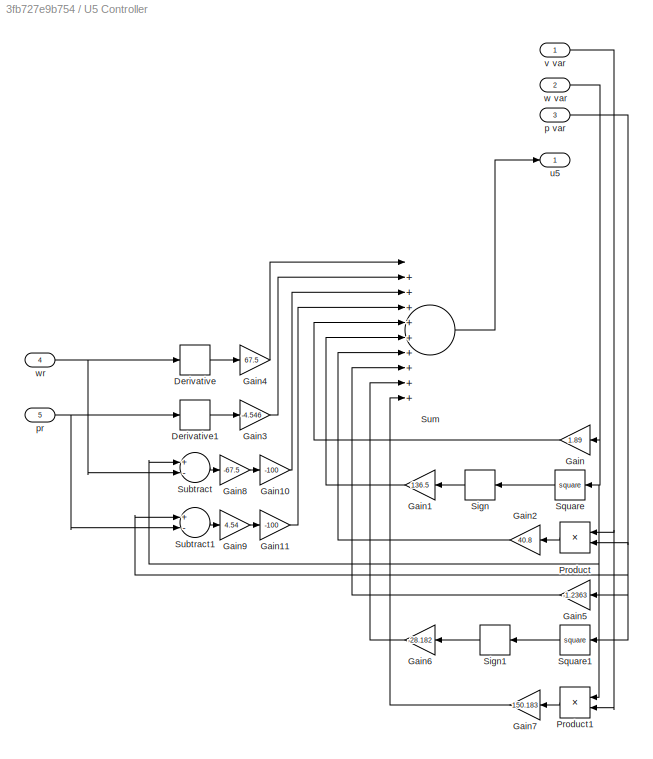
BLOCK [SubSystem] U5 Controller
  Ports = [5, 1]
  RequestExecContextInheritance = off
BLOCK [Derivative] U5 Controller/Derivative
BLOCK [Derivative] U5 Controller/Derivative1
BLOCK [Gain] U5 Controller/Gain
  Gain = 1.89
  OutDataTypeStr = Inherit: Inherit via internal rule
  ParamDataTypeStr = Inherit: Inherit via internal rule
  SaturateOnIntegerOverflow = off
BLOCK [Gain] U5 Controller/Gain1
  Gain = 136.5
  OutDataTypeStr = Inherit: Inherit via internal rule
  ParamDataTypeStr = Inherit: Inherit via internal rule
  SaturateOnIntegerOverflow = off
BLOCK [Gain] U5 Controller/Gain10
  Gain = -100
  OutDataTypeStr = Inherit: Inherit via internal rule
  ParamDataTypeStr = Inherit: Inherit via internal rule
  SaturateOnIntegerOverflow = off
BLOCK [Gain] U5 Controller/Gain11
  Gain = -100
  OutDataTypeStr = Inherit: Inherit via internal rule
  ParamDataTypeStr = Inherit: Inherit via internal rule
  SaturateOnIntegerOverflow = off
BLOCK [Gain] U5 Controller/Gain2
  Gain = 40.8
  OutDataTypeStr = Inherit: Inherit via internal rule
  ParamDataTypeStr = Inherit: Inherit via internal rule
  SaturateOnIntegerOverflow = off
BLOCK [Gain] U5 Controller/Gain3
  Gain = -4.546
  OutDataTypeStr = Inherit: Inherit via internal rule
  ParamDataTypeStr = Inherit: Inherit via internal rule
  SaturateOnIntegerOverflow = off
BLOCK [Gain] U5 Controller/Gain4
  Gain = 67.5
  OutDataTypeStr = Inherit: Inherit via internal rule
  ParamDataTypeStr = Inherit: Inherit via internal rule
  SaturateOnIntegerOverflow = off
BLOCK [Gain] U5 Controller/Gain5
  Gain = -1.2363
  OutDataTypeStr = Inherit: Inherit via internal rule
  ParamDataTypeStr = Inherit: Inherit via internal rule
  SaturateOnIntegerOverflow = off
BLOCK [Gain] U5 Controller/Gain6
  Gain = -28.182
  OutDataTypeStr = Inherit: Inherit via internal rule
  ParamDataTypeStr = Inherit: Inherit via internal rule
  SaturateOnIntegerOverflow = off
BLOCK [Gain] U5 Controller/Gain7
  Gain = 150.183
  OutDataTypeStr = Inherit: Inherit via internal rule
  ParamDataTypeStr = Inherit: Inherit via internal rule
  SaturateOnIntegerOverflow = off
BLOCK [Gain] U5 Controller/Gain8
  Gain = -67.5
  OutDataTypeStr = Inherit: Inherit via internal rule
  ParamDataTypeStr = Inherit: Inherit via internal rule
  SaturateOnIntegerOverflow = off
BLOCK [Gain] U5 Controller/Gain9
  Gain = 4.54
  OutDataTypeStr = Inherit: Inherit via internal rule
  ParamDataTypeStr = Inherit: Inherit via internal rule
  SaturateOnIntegerOverflow = off
BLOCK [Product] U5 Controller/Product
  InputSameDT = off
  OutDataTypeStr = Inherit: Inherit via internal rule
  Ports = [2, 1]
  RndMeth = Floor
  SaturateOnIntegerOverflow = off
BLOCK [Product] U5 Controller/Product1
  InputSameDT = off
  OutDataTypeStr = Inherit: Inherit via internal rule
  Ports = [2, 1]
  RndMeth = Floor
  SaturateOnIntegerOverflow = off
BLOCK [Signum] U5 Controller/Sign
BLOCK [Signum] U5 Controller/Sign1
BLOCK [Math] U5 Controller/Square
  Operator = square
  Ports = [1, 1]
BLOCK [Math] U5 Controller/Square1
  Operator = square
  Ports = [1, 1]
BLOCK [Sum] U5 Controller/Subtract
  InputSameDT = off
  Inputs = +-
  OutDataTypeStr = Inherit: Inherit via internal rule
  Ports = [2, 1]
  SaturateOnIntegerOverflow = off
BLOCK [Sum] U5 Controller/Subtract1
  InputSameDT = off
  Inputs = +-
  OutDataTypeStr = Inherit: Inherit via internal rule
  Ports = [2, 1]
  SaturateOnIntegerOverflow = off
BLOCK [Sum] U5 Controller/Sum
  InputSameDT = off
  Inputs = |++++++++++
  OutDataTypeStr = Inherit: Inherit via internal rule
  Ports = [10, 1]
  SaturateOnIntegerOverflow = off
BLOCK [Inport] U5 Controller/p var
  IconDisplay = Port number
  Port = 3
BLOCK [Inport] U5 Controller/pr
  IconDisplay = Port number
  Port = 5
BLOCK [Outport] U5 Controller/u5
  IconDisplay = Port number
BLOCK [Inport] U5 Controller/v var
  IconDisplay = Port number
BLOCK [Inport] U5 Controller/w var 
  IconDisplay = Port number
  Port = 2
BLOCK [Inport] U5 Controller/wr
  IconDisplay = Port number
  Port = 4
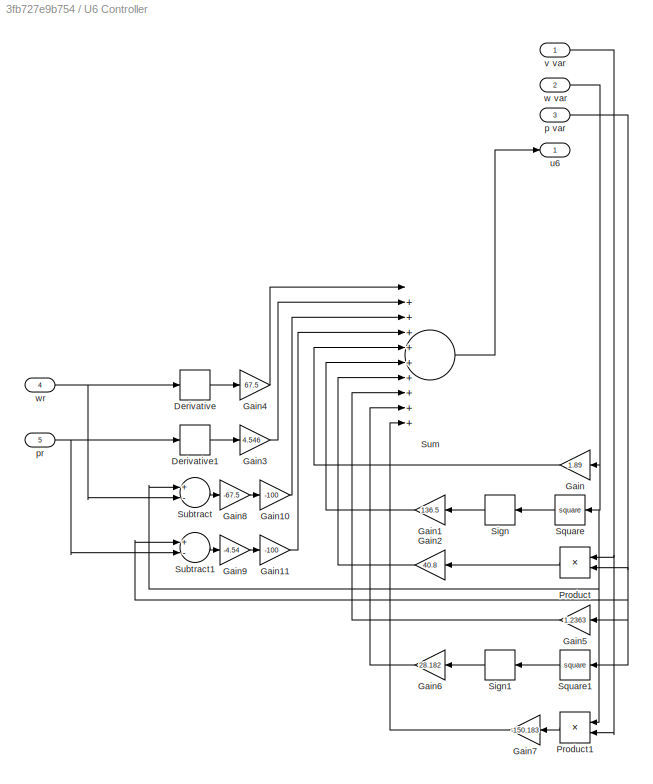
BLOCK [SubSystem] U6 Controller 
  Ports = [5, 1]
  RequestExecContextInheritance = off
BLOCK [Derivative] U6 Controller /Derivative
BLOCK [Derivative] U6 Controller /Derivative1
BLOCK [Gain] U6 Controller /Gain
  Gain = 1.89
  OutDataTypeStr = Inherit: Inherit via internal rule
  ParamDataTypeStr = Inherit: Inherit via internal rule
  SaturateOnIntegerOverflow = off
BLOCK [Gain] U6 Controller /Gain1
  Gain = 136.5
  OutDataTypeStr = Inherit: Inherit via internal rule
  ParamDataTypeStr = Inherit: Inherit via internal rule
  SaturateOnIntegerOverflow = off
BLOCK [Gain] U6 Controller /Gain10
  Gain = -100
  OutDataTypeStr = Inherit: Inherit via internal rule
  ParamDataTypeStr = Inherit: Inherit via internal rule
  SaturateOnIntegerOverflow = off
BLOCK [Gain] U6 Controller /Gain11
  Gain = -100
  OutDataTypeStr = Inherit: Inherit via internal rule
  ParamDataTypeStr = Inherit: Inherit via internal rule
  SaturateOnIntegerOverflow = off
BLOCK [Gain] U6 Controller /Gain2
  Gain = 40.8
  OutDataTypeStr = Inherit: Inherit via internal rule
  ParamDataTypeStr = Inherit: Inherit via internal rule
  SaturateOnIntegerOverflow = off
BLOCK [Gain] U6 Controller /Gain3
  Gain = 4.546
  OutDataTypeStr = Inherit: Inherit via internal rule
  ParamDataTypeStr = Inherit: Inherit via internal rule
  SaturateOnIntegerOverflow = off
BLOCK [Gain] U6 Controller /Gain4
  Gain = 67.5
  OutDataTypeStr = Inherit: Inherit via internal rule
  ParamDataTypeStr = Inherit: Inherit via internal rule
  SaturateOnIntegerOverflow = off
BLOCK [Gain] U6 Controller /Gain5
  Gain = 1.2363
  OutDataTypeStr = Inherit: Inherit via internal rule
  ParamDataTypeStr = Inherit: Inherit via internal rule
  SaturateOnIntegerOverflow = off
BLOCK [Gain] U6 Controller /Gain6
  Gain = 28.182
  OutDataTypeStr = Inherit: Inherit via internal rule
  ParamDataTypeStr = Inherit: Inherit via internal rule
  SaturateOnIntegerOverflow = off
BLOCK [Gain] U6 Controller /Gain7
  Gain = -150.183
  OutDataTypeStr = Inherit: Inherit via internal rule
  ParamDataTypeStr = Inherit: Inherit via internal rule
  SaturateOnIntegerOverflow = off
BLOCK [Gain] U6 Controller /Gain8
  Gain = -67.5
  OutDataTypeStr = Inherit: Inherit via internal rule
  ParamDataTypeStr = Inherit: Inherit via internal rule
  SaturateOnIntegerOverflow = off
BLOCK [Gain] U6 Controller /Gain9
  Gain = -4.54
  OutDataTypeStr = Inherit: Inherit via internal rule
  ParamDataTypeStr = Inherit: Inherit via internal rule
  SaturateOnIntegerOverflow = off
BLOCK [Product] U6 Controller /Product
  InputSameDT = off
  OutDataTypeStr = Inherit: Inherit via internal rule
  Ports = [2, 1]
  RndMeth = Floor
  SaturateOnIntegerOverflow = off
BLOCK [Product] U6 Controller /Product1
  InputSameDT = off
  OutDataTypeStr = Inherit: Inherit via internal rule
  Ports = [2, 1]
  RndMeth = Floor
  SaturateOnIntegerOverflow = off
BLOCK [Signum] U6 Controller /Sign
BLOCK [Signum] U6 Controller /Sign1
BLOCK [Math] U6 Controller /Square
  Operator = square
  Ports = [1, 1]
BLOCK [Math] U6 Controller /Square1
  Operator = square
  Ports = [1, 1]
BLOCK [Sum] U6 Controller /Subtract
  InputSameDT = off
  Inputs = +-
  OutDataTypeStr = Inherit: Inherit via internal rule
  Ports = [2, 1]
  SaturateOnIntegerOverflow = off
BLOCK [Sum] U6 Controller /Subtract1
  InputSameDT = off
  Inputs = +-
  OutDataTypeStr = Inherit: Inherit via internal rule
  Ports = [2, 1]
  SaturateOnIntegerOverflow = off
BLOCK [Sum] U6 Controller /Sum
  InputSameDT = off
  Inputs = |++++++++++
  OutDataTypeStr = Inherit: Inherit via internal rule
  Ports = [10, 1]
  SaturateOnIntegerOverflow = off
BLOCK [Inport] U6 Controller /p var 
  IconDisplay = Port number
  Port = 3
BLOCK [Inport] U6 Controller /pr
  IconDisplay = Port number
  Port = 5
BLOCK [Outport] U6 Controller /u6 
  IconDisplay = Port number
BLOCK [Inport] U6 Controller /v var 
  IconDisplay = Port number
BLOCK [Inport] U6 Controller /w var 
  IconDisplay = Port number
  Port = 2
BLOCK [Inport] U6 Controller /wr
  IconDisplay = Port number
  Port = 4
BLOCK [SignalGenerator] pr
  Amplitude = 0
  Ports = [0, 1]
  Units = rad/sec
BLOCK [SignalGenerator] wr1
  Amplitude = 0
  Ports = [0, 1]
  Units = rad/sec
BLOCK [SignalGenerator] wr2
  Amplitude = 0
  Ports = [0, 1]
  Units = rad/sec
BLOCK [SignalGenerator] wr3
  Amplitude = 0
  Ports = [0, 1]
  Units = rad/sec
BLOCK [SignalGenerator] wr4
  Amplitude = 0
  Ports = [0, 1]
  Units = rad/sec
ANNOTATION (root): Here assumed that the sytem is does not require state estimation and could exactly predict state.
ANNOTATION (root): Sliding Mode Controller for ROV without Estimation
ANNOTATION Subsystem1/P Plant: P plant
ANNOTATION Subsystem1/P Plant: q var
ANNOTATION Subsystem1/Q Plant: Q plant
ANNOTATION Subsystem1/R Plant : R plant
ANNOTATION Subsystem1/U plant : U plant
ANNOTATION Subsystem1/V plant : V plant
ANNOTATION Subsystem1/W Plant : W plant
NET Constant:1 -> U5 Controller:4, U6 Controller :4
LINE Gain1:1 -> Subsystem1:5
LINE Gain:1 -> Subsystem1:6
LINE Subsystem1/In1:1 -> Subsystem1/Subsystem:1
LINE Subsystem1/In2:1 -> Subsystem1/Subsystem:2
LINE Subsystem1/In3:1 -> Subsystem1/Subsystem:3
LINE Subsystem1/In4:1 -> Subsystem1/Subsystem:4
LINE Subsystem1/In5:1 -> Subsystem1/Subsystem:5
LINE Subsystem1/In6:1 -> Subsystem1/Subsystem:6
LINE Subsystem1/P Plant/Gain1:1 -> Subsystem1/P Plant/Sum:5
LINE Subsystem1/P Plant/Gain2:1 -> Subsystem1/P Plant/Integrator3:1
LINE Subsystem1/P Plant/Gain3:1 -> Subsystem1/P Plant/Sum:4
LINE Subsystem1/P Plant/Gain4:1 -> Subsystem1/P Plant/Sum:3
LINE Subsystem1/P Plant/Gain5:1 -> Subsystem1/P Plant/Sum:2
LINE Subsystem1/P Plant/Gain:1 -> Subsystem1/P Plant/Sum:6
LINE Subsystem1/P Plant/In1:1 -> Subsystem1/P Plant/Sum:1
NET Subsystem1/P Plant/In2:1 -> Subsystem1/P Plant/Product:2, Subsystem1/P Plant/Square2:1
NET Subsystem1/P Plant/In3 :1 -> Subsystem1/P Plant/Product:1, Subsystem1/P Plant/Square1:1
NET Subsystem1/P Plant/Integrator3:1 -> Subsystem1/P Plant/Gain:1, Subsystem1/P Plant/Out1:1, Subsystem1/P Plant/Square:1
LINE Subsystem1/P Plant/Product:1 -> Subsystem1/P Plant/Gain5:1
LINE Subsystem1/P Plant/Sign1:1 -> Subsystem1/P Plant/Gain3:1
LINE Subsystem1/P Plant/Sign2:1 -> Subsystem1/P Plant/Gain4:1
LINE Subsystem1/P Plant/Sign:1 -> Subsystem1/P Plant/Gain1:1
LINE Subsystem1/P Plant/Square1:1 -> Subsystem1/P Plant/Sign1:1
LINE Subsystem1/P Plant/Square2:1 -> Subsystem1/P Plant/Sign2:1
LINE Subsystem1/P Plant/Square:1 -> Subsystem1/P Plant/Sign:1
LINE Subsystem1/P Plant/Sum:1 -> Subsystem1/P Plant/Gain2:1
NET Subsystem1/P Plant:1 -> Subsystem1/Out4:1, Subsystem1/Q Plant:2, Subsystem1/R Plant :2, Subsystem1/V plant :5, Subsystem1/W Plant :4
LINE Subsystem1/Q Plant/Gain1:1 -> Subsystem1/Q Plant/Sum:4
LINE Subsystem1/Q Plant/Gain2:1 -> Subsystem1/Q Plant/Integrator4:1
LINE Subsystem1/Q Plant/Gain3:1 -> Subsystem1/Q Plant/Sum:2
LINE Subsystem1/Q Plant/Gain4:1 -> Subsystem1/Q Plant/Sum:3
LINE Subsystem1/Q Plant/Gain:1 -> Subsystem1/Q Plant/Sum:5
LINE Subsystem1/Q Plant/In1:1 -> Subsystem1/Q Plant/Sum:1
NET Subsystem1/Q Plant/In2:1 -> Subsystem1/Q Plant/Product1:1, Subsystem1/Q Plant/Product:1
LINE Subsystem1/Q Plant/In3:1 -> Subsystem1/Q Plant/Product1:2
NET Subsystem1/Q Plant/Integrator4:1 -> Subsystem1/Q Plant/Gain:1, Subsystem1/Q Plant/Out1:1, Subsystem1/Q Plant/Product:2, Subsystem1/Q Plant/Square:1
LINE Subsystem1/Q Plant/Product1:1 -> Subsystem1/Q Plant/Gain4:1
LINE Subsystem1/Q Plant/Product:1 -> Subsystem1/Q Plant/Gain3:1
LINE Subsystem1/Q Plant/Sign:1 -> Subsystem1/Q Plant/Gain1:1
LINE Subsystem1/Q Plant/Square:1 -> Subsystem1/Q Plant/Sign:1
LINE Subsystem1/Q Plant/Sum:1 -> Subsystem1/Q Plant/Gain2:1
NET Subsystem1/Q Plant:1 -> Subsystem1/Out5:1, Subsystem1/P Plant:3, Subsystem1/R Plant :3, Subsystem1/U plant :4, Subsystem1/W Plant :5
LINE Subsystem1/R Plant /Gain1:1 -> Subsystem1/R Plant /Sum:5
LINE Subsystem1/R Plant /Gain2:1 -> Subsystem1/R Plant /Integrator5:1
LINE Subsystem1/R Plant /Gain3:1 -> Subsystem1/R Plant /Sum:2
LINE Subsystem1/R Plant /Gain4:1 -> Subsystem1/R Plant /Sum:3
LINE Subsystem1/R Plant /Gain5:1 -> Subsystem1/R Plant /Sum:4
LINE Subsystem1/R Plant /Gain:1 -> Subsystem1/R Plant /Sum:6
LINE Subsystem1/R Plant /In1:1 -> Subsystem1/R Plant /Sum:1
NET Subsystem1/R Plant /In2:1 -> Subsystem1/R Plant /Product2:3, Subsystem1/R Plant /Product:2, Subsystem1/R Plant /Square1:1
LINE Subsystem1/R Plant /In3:1 -> Subsystem1/R Plant /Product2:1
NET Subsystem1/R Plant /Integrator5:1 -> Subsystem1/R Plant /Gain:1, Subsystem1/R Plant /Out1:1, Subsystem1/R Plant /Product:1, Subsystem1/R Plant /Square:1
LINE Subsystem1/R Plant /Product2:1 -> Subsystem1/R Plant /Gain5:1
LINE Subsystem1/R Plant /Product:1 -> Subsystem1/R Plant /Gain4:1
LINE Subsystem1/R Plant /Sign1:1 -> Subsystem1/R Plant /Gain3:1
LINE Subsystem1/R Plant /Sign:1 -> Subsystem1/R Plant /Gain1:1
LINE Subsystem1/R Plant /Square1:1 -> Subsystem1/R Plant /Sign1:1
LINE Subsystem1/R Plant /Square:1 -> Subsystem1/R Plant /Sign:1
LINE Subsystem1/R Plant /Sum:1 -> Subsystem1/R Plant /Gain2:1
NET Subsystem1/R Plant :1 -> Subsystem1/Out6:1, Subsystem1/P Plant:2, Subsystem1/Q Plant:3, Subsystem1/U plant :5, Subsystem1/V plant :3
NET Subsystem1/Subsystem/In1:1 -> Subsystem1/Subsystem/T1 :1, Subsystem1/Subsystem/T2:1, Subsystem1/Subsystem/T3 :1, Subsystem1/Subsystem/T4:1, Subsystem1/Subsystem/T5:1, Subsystem1/Subsystem/T6:1
NET Subsystem1/Subsystem/In2:1 -> Subsystem1/Subsystem/T1 :2, Subsystem1/Subsystem/T2:2, Subsystem1/Subsystem/T3 :2, Subsystem1/Subsystem/T4:2, Subsystem1/Subsystem/T5:2, Subsystem1/Subsystem/T6:2
NET Subsystem1/Subsystem/In3:1 -> Subsystem1/Subsystem/T1 :3, Subsystem1/Subsystem/T2:3, Subsystem1/Subsystem/T3 :3, Subsystem1/Subsystem/T4:3, Subsystem1/Subsystem/T5:3, Subsystem1/Subsystem/T6:3
NET Subsystem1/Subsystem/In4:1 -> Subsystem1/Subsystem/T1 :4, Subsystem1/Subsystem/T2:4, Subsystem1/Subsystem/T3 :4, Subsystem1/Subsystem/T4:4, Subsystem1/Subsystem/T5:4, Subsystem1/Subsystem/T6:4
NET Subsystem1/Subsystem/In5:1 -> Subsystem1/Subsystem/T1 :5, Subsystem1/Subsystem/T2:5, Subsystem1/Subsystem/T3 :5, Subsystem1/Subsystem/T4:5, Subsystem1/Subsystem/T5:5, Subsystem1/Subsystem/T6:5
NET Subsystem1/Subsystem/In6:1 -> Subsystem1/Subsystem/T1 :6, Subsystem1/Subsystem/T2:6, Subsystem1/Subsystem/T3 :6, Subsystem1/Subsystem/T4:6, Subsystem1/Subsystem/T5:6, Subsystem1/Subsystem/T6:6
LINE Subsystem1/Subsystem/T1 /Gain3:1 -> Subsystem1/Subsystem/T1 /Sum1:1
LINE Subsystem1/Subsystem/T1 /Gain4:1 -> Subsystem1/Subsystem/T1 /Sum1:2
LINE Subsystem1/Subsystem/T1 /Gain5:1 -> Subsystem1/Subsystem/T1 /Sum1:3
LINE Subsystem1/Subsystem/T1 /Gain6:1 -> Subsystem1/Subsystem/T1 /Sum1:4
LINE Subsystem1/Subsystem/T1 /Gain7:1 -> Subsystem1/Subsystem/T1 /Sum1:5
LINE Subsystem1/Subsystem/T1 /Gain8:1 -> Subsystem1/Subsystem/T1 /Sum1:6
LINE Subsystem1/Subsystem/T1 /In1:1 -> Subsystem1/Subsystem/T1 /Gain3:1
LINE Subsystem1/Subsystem/T1 /In2:1 -> Subsystem1/Subsystem/T1 /Gain4:1
LINE Subsystem1/Subsystem/T1 /In3:1 -> Subsystem1/Subsystem/T1 /Gain5:1
LINE Subsystem1/Subsystem/T1 /In4:1 -> Subsystem1/Subsystem/T1 /Gain6:1
LINE Subsystem1/Subsystem/T1 /In5:1 -> Subsystem1/Subsystem/T1 /Gain7:1
LINE Subsystem1/Subsystem/T1 /In6:1 -> Subsystem1/Subsystem/T1 /Gain8:1
LINE Subsystem1/Subsystem/T1 /Sum1:1 -> Subsystem1/Subsystem/T1 /Out1:1
LINE Subsystem1/Subsystem/T1 :1 -> Subsystem1/Subsystem/Out1:1
LINE Subsystem1/Subsystem/T2/Gain3:1 -> Subsystem1/Subsystem/T2/Sum1:1
LINE Subsystem1/Subsystem/T2/Gain4:1 -> Subsystem1/Subsystem/T2/Sum1:2
LINE Subsystem1/Subsystem/T2/Gain5:1 -> Subsystem1/Subsystem/T2/Sum1:3
LINE Subsystem1/Subsystem/T2/Gain6:1 -> Subsystem1/Subsystem/T2/Sum1:4
LINE Subsystem1/Subsystem/T2/Gain7:1 -> Subsystem1/Subsystem/T2/Sum1:5
LINE Subsystem1/Subsystem/T2/Gain8:1 -> Subsystem1/Subsystem/T2/Sum1:6
LINE Subsystem1/Subsystem/T2/In1:1 -> Subsystem1/Subsystem/T2/Gain3:1
LINE Subsystem1/Subsystem/T2/In2:1 -> Subsystem1/Subsystem/T2/Gain4:1
LINE Subsystem1/Subsystem/T2/In3:1 -> Subsystem1/Subsystem/T2/Gain5:1
LINE Subsystem1/Subsystem/T2/In4:1 -> Subsystem1/Subsystem/T2/Gain6:1
LINE Subsystem1/Subsystem/T2/In5:1 -> Subsystem1/Subsystem/T2/Gain7:1
LINE Subsystem1/Subsystem/T2/In6:1 -> Subsystem1/Subsystem/T2/Gain8:1
LINE Subsystem1/Subsystem/T2/Sum1:1 -> Subsystem1/Subsystem/T2/Out1:1
LINE Subsystem1/Subsystem/T2:1 -> Subsystem1/Subsystem/Out2:1
LINE Subsystem1/Subsystem/T3 /Gain3:1 -> Subsystem1/Subsystem/T3 /Sum1:1
LINE Subsystem1/Subsystem/T3 /Gain4:1 -> Subsystem1/Subsystem/T3 /Sum1:2
LINE Subsystem1/Subsystem/T3 /Gain5:1 -> Subsystem1/Subsystem/T3 /Sum1:3
LINE Subsystem1/Subsystem/T3 /Gain6:1 -> Subsystem1/Subsystem/T3 /Sum1:4
LINE Subsystem1/Subsystem/T3 /Gain7:1 -> Subsystem1/Subsystem/T3 /Sum1:5
LINE Subsystem1/Subsystem/T3 /Gain8:1 -> Subsystem1/Subsystem/T3 /Sum1:6
LINE Subsystem1/Subsystem/T3 /In1:1 -> Subsystem1/Subsystem/T3 /Gain3:1
LINE Subsystem1/Subsystem/T3 /In2:1 -> Subsystem1/Subsystem/T3 /Gain4:1
LINE Subsystem1/Subsystem/T3 /In3:1 -> Subsystem1/Subsystem/T3 /Gain5:1
LINE Subsystem1/Subsystem/T3 /In4:1 -> Subsystem1/Subsystem/T3 /Gain6:1
LINE Subsystem1/Subsystem/T3 /In5:1 -> Subsystem1/Subsystem/T3 /Gain7:1
LINE Subsystem1/Subsystem/T3 /In6:1 -> Subsystem1/Subsystem/T3 /Gain8:1
LINE Subsystem1/Subsystem/T3 /Sum1:1 -> Subsystem1/Subsystem/T3 /Out1:1
LINE Subsystem1/Subsystem/T3 :1 -> Subsystem1/Subsystem/Out3:1
LINE Subsystem1/Subsystem/T4/Gain3:1 -> Subsystem1/Subsystem/T4/Sum1:1
LINE Subsystem1/Subsystem/T4/Gain4:1 -> Subsystem1/Subsystem/T4/Sum1:2
LINE Subsystem1/Subsystem/T4/Gain5:1 -> Subsystem1/Subsystem/T4/Sum1:3
LINE Subsystem1/Subsystem/T4/Gain6:1 -> Subsystem1/Subsystem/T4/Sum1:4
LINE Subsystem1/Subsystem/T4/Gain7:1 -> Subsystem1/Subsystem/T4/Sum1:5
LINE Subsystem1/Subsystem/T4/Gain8:1 -> Subsystem1/Subsystem/T4/Sum1:6
LINE Subsystem1/Subsystem/T4/In1:1 -> Subsystem1/Subsystem/T4/Gain3:1
LINE Subsystem1/Subsystem/T4/In2:1 -> Subsystem1/Subsystem/T4/Gain4:1
LINE Subsystem1/Subsystem/T4/In3:1 -> Subsystem1/Subsystem/T4/Gain5:1
LINE Subsystem1/Subsystem/T4/In4:1 -> Subsystem1/Subsystem/T4/Gain6:1
LINE Subsystem1/Subsystem/T4/In5:1 -> Subsystem1/Subsystem/T4/Gain7:1
LINE Subsystem1/Subsystem/T4/In6:1 -> Subsystem1/Subsystem/T4/Gain8:1
LINE Subsystem1/Subsystem/T4/Sum1:1 -> Subsystem1/Subsystem/T4/Out1:1
LINE Subsystem1/Subsystem/T4:1 -> Subsystem1/Subsystem/Out4:1
LINE Subsystem1/Subsystem/T5/Gain3:1 -> Subsystem1/Subsystem/T5/Sum1:1
LINE Subsystem1/Subsystem/T5/Gain4:1 -> Subsystem1/Subsystem/T5/Sum1:2
LINE Subsystem1/Subsystem/T5/Gain5:1 -> Subsystem1/Subsystem/T5/Sum1:3
LINE Subsystem1/Subsystem/T5/Gain6:1 -> Subsystem1/Subsystem/T5/Sum1:4
LINE Subsystem1/Subsystem/T5/Gain7:1 -> Subsystem1/Subsystem/T5/Sum1:5
LINE Subsystem1/Subsystem/T5/Gain8:1 -> Subsystem1/Subsystem/T5/Sum1:6
LINE Subsystem1/Subsystem/T5/In1:1 -> Subsystem1/Subsystem/T5/Gain3:1
LINE Subsystem1/Subsystem/T5/In2:1 -> Subsystem1/Subsystem/T5/Gain4:1
LINE Subsystem1/Subsystem/T5/In3:1 -> Subsystem1/Subsystem/T5/Gain5:1
LINE Subsystem1/Subsystem/T5/In4:1 -> Subsystem1/Subsystem/T5/Gain6:1
LINE Subsystem1/Subsystem/T5/In5:1 -> Subsystem1/Subsystem/T5/Gain7:1
LINE Subsystem1/Subsystem/T5/In6:1 -> Subsystem1/Subsystem/T5/Gain8:1
LINE Subsystem1/Subsystem/T5/Sum1:1 -> Subsystem1/Subsystem/T5/Out1:1
LINE Subsystem1/Subsystem/T5:1 -> Subsystem1/Subsystem/Out5:1
LINE Subsystem1/Subsystem/T6/Gain3:1 -> Subsystem1/Subsystem/T6/Sum1:1
LINE Subsystem1/Subsystem/T6/Gain4:1 -> Subsystem1/Subsystem/T6/Sum1:2
LINE Subsystem1/Subsystem/T6/Gain5:1 -> Subsystem1/Subsystem/T6/Sum1:3
LINE Subsystem1/Subsystem/T6/Gain6:1 -> Subsystem1/Subsystem/T6/Sum1:4
LINE Subsystem1/Subsystem/T6/Gain7:1 -> Subsystem1/Subsystem/T6/Sum1:5
LINE Subsystem1/Subsystem/T6/Gain8:1 -> Subsystem1/Subsystem/T6/Sum1:6
LINE Subsystem1/Subsystem/T6/In1:1 -> Subsystem1/Subsystem/T6/Gain3:1
LINE Subsystem1/Subsystem/T6/In2:1 -> Subsystem1/Subsystem/T6/Gain4:1
LINE Subsystem1/Subsystem/T6/In3:1 -> Subsystem1/Subsystem/T6/Gain5:1
LINE Subsystem1/Subsystem/T6/In4:1 -> Subsystem1/Subsystem/T6/Gain6:1
LINE Subsystem1/Subsystem/T6/In5:1 -> Subsystem1/Subsystem/T6/Gain7:1
LINE Subsystem1/Subsystem/T6/In6:1 -> Subsystem1/Subsystem/T6/Gain8:1
LINE Subsystem1/Subsystem/T6/Sum1:1 -> Subsystem1/Subsystem/T6/Out1:1
LINE Subsystem1/Subsystem/T6:1 -> Subsystem1/Subsystem/Out6:1
LINE Subsystem1/Subsystem:1 -> Subsystem1/U plant :1
LINE Subsystem1/Subsystem:2 -> Subsystem1/V plant :1
LINE Subsystem1/Subsystem:3 -> Subsystem1/W Plant :1
LINE Subsystem1/Subsystem:4 -> Subsystem1/P Plant:1
LINE Subsystem1/Subsystem:5 -> Subsystem1/Q Plant:1
LINE Subsystem1/Subsystem:6 -> Subsystem1/R Plant :1
LINE Subsystem1/U plant /Gain1:1 -> Subsystem1/U plant /Sum:4
LINE Subsystem1/U plant /Gain2:1 -> Subsystem1/U plant /Integrator:1
LINE Subsystem1/U plant /Gain3:1 -> Subsystem1/U plant /Sum:3
LINE Subsystem1/U plant /Gain4:1 -> Subsystem1/U plant /Sum:2
LINE Subsystem1/U plant /Gain:1 -> Subsystem1/U plant /Sum:5
LINE Subsystem1/U plant /In1:1 -> Subsystem1/U plant /Sum:1
LINE Subsystem1/U plant /In2:1 -> Subsystem1/U plant /Product1:2
LINE Subsystem1/U plant /In3:1 -> Subsystem1/U plant /Product:2
LINE Subsystem1/U plant /In4:1 -> Subsystem1/U plant /Product:1
LINE Subsystem1/U plant /In5:1 -> Subsystem1/U plant /Product1:1
NET Subsystem1/U plant /Integrator:1 -> Subsystem1/U plant /Gain:1, Subsystem1/U plant /Out1:1, Subsystem1/U plant /Square:1
LINE Subsystem1/U plant /Product1:1 -> Subsystem1/U plant /Gain4:1
LINE Subsystem1/U plant /Product:1 -> Subsystem1/U plant /Gain3:1
LINE Subsystem1/U plant /Sign:1 -> Subsystem1/U plant /Gain1:1
LINE Subsystem1/U plant /Square:1 -> Subsystem1/U plant /Sign:1
LINE Subsystem1/U plant /Sum:1 -> Subsystem1/U plant /Gain2:1
NET Subsystem1/U plant :1 -> Subsystem1/Out1:1, Subsystem1/V plant :2, Subsystem1/W Plant :3
LINE Subsystem1/V plant /Gain1:1 -> Subsystem1/V plant /Integrator1:1
LINE Subsystem1/V plant /Gain2:1 -> Subsystem1/V plant /Sum:4
LINE Subsystem1/V plant /Gain3:1 -> Subsystem1/V plant /Sum:3
LINE Subsystem1/V plant /Gain4:1 -> Subsystem1/V plant /Sum:2
LINE Subsystem1/V plant /Gain:1 -> Subsystem1/V plant /Sum:5
LINE Subsystem1/V plant /In1:1 -> Subsystem1/V plant /Sum:1
LINE Subsystem1/V plant /In2:1 -> Subsystem1/V plant /Product:1
LINE Subsystem1/V plant /In3:1 -> Subsystem1/V plant /Product:2
LINE Subsystem1/V plant /In4:1 -> Subsystem1/V plant /Product1:1
LINE Subsystem1/V plant /In5:1 -> Subsystem1/V plant /Product1:2
NET Subsystem1/V plant /Integrator1:1 -> Subsystem1/V plant /Gain:1, Subsystem1/V plant /Out1:1, Subsystem1/V plant /Square:1
LINE Subsystem1/V plant /Product1:1 -> Subsystem1/V plant /Gain4:1
LINE Subsystem1/V plant /Product:1 -> Subsystem1/V plant /Gain3:1
LINE Subsystem1/V plant /Sign:1 -> Subsystem1/V plant /Gain2:1
LINE Subsystem1/V plant /Square:1 -> Subsystem1/V plant /Sign:1
LINE Subsystem1/V plant /Sum:1 -> Subsystem1/V plant /Gain1:1
NET Subsystem1/V plant :1 -> Subsystem1/Out2:1, Subsystem1/U plant :2, Subsystem1/W Plant :2
LINE Subsystem1/W Plant /Gain1:1 -> Subsystem1/W Plant /Sum:4
LINE Subsystem1/W Plant /Gain2:1 -> Subsystem1/W Plant /Integrator2:1
LINE Subsystem1/W Plant /Gain3:1 -> Subsystem1/W Plant /Sum:3
LINE Subsystem1/W Plant /Gain4:1 -> Subsystem1/W Plant /Sum:2
LINE Subsystem1/W Plant /Gain:1 -> Subsystem1/W Plant /Sum:5
LINE Subsystem1/W Plant /In1:1 -> Subsystem1/W Plant /Sum:1
LINE Subsystem1/W Plant /In2:1 -> Subsystem1/W Plant /Product1:1
LINE Subsystem1/W Plant /In3:1 -> Subsystem1/W Plant /Product:1
LINE Subsystem1/W Plant /In4:1 -> Subsystem1/W Plant /Product1:2
LINE Subsystem1/W Plant /In5:1 -> Subsystem1/W Plant /Product:2
NET Subsystem1/W Plant /Integrator2:1 -> Subsystem1/W Plant /Gain:1, Subsystem1/W Plant /Out1:1, Subsystem1/W Plant /Square:1
LINE Subsystem1/W Plant /Product1:1 -> Subsystem1/W Plant /Gain4:1
LINE Subsystem1/W Plant /Product:1 -> Subsystem1/W Plant /Gain3:1
LINE Subsystem1/W Plant /Sign:1 -> Subsystem1/W Plant /Gain1:1
LINE Subsystem1/W Plant /Square:1 -> Subsystem1/W Plant /Sign:1
LINE Subsystem1/W Plant /Sum:1 -> Subsystem1/W Plant /Gain2:1
NET Subsystem1/W Plant :1 -> Subsystem1/Out3:1, Subsystem1/U plant :3, Subsystem1/V plant :4
LINE Subsystem1:1 -> Scope5:1
NET Subsystem1:2 -> Scope:1, U5 Controller:1, U6 Controller :1
NET Subsystem1:3 -> Scope1:1, U5 Controller:2, U6 Controller :2
NET Subsystem1:4 -> Scope2:1, U5 Controller:3, U6 Controller :3
LINE Subsystem1:5 -> Scope3:1
LINE Subsystem1:6 -> Scope4:1
LINE U5 Controller/Derivative1:1 -> U5 Controller/Gain3:1
LINE U5 Controller/Derivative:1 -> U5 Controller/Gain4:1
LINE U5 Controller/Gain10:1 -> U5 Controller/Sum:3
LINE U5 Controller/Gain11:1 -> U5 Controller/Sum:4
LINE U5 Controller/Gain1:1 -> U5 Controller/Sum:6
LINE U5 Controller/Gain2:1 -> U5 Controller/Sum:7
LINE U5 Controller/Gain3:1 -> U5 Controller/Sum:2
LINE U5 Controller/Gain4:1 -> U5 Controller/Sum:1
LINE U5 Controller/Gain5:1 -> U5 Controller/Sum:8
LINE U5 Controller/Gain6:1 -> U5 Controller/Sum:9
LINE U5 Controller/Gain7:1 -> U5 Controller/Sum:10
LINE U5 Controller/Gain8:1 -> U5 Controller/Gain10:1
LINE U5 Controller/Gain9:1 -> U5 Controller/Gain11:1
LINE U5 Controller/Gain:1 -> U5 Controller/Sum:5
LINE U5 Controller/Product1:1 -> U5 Controller/Gain7:1
LINE U5 Controller/Product:1 -> U5 Controller/Gain2:1
LINE U5 Controller/Sign1:1 -> U5 Controller/Gain6:1
LINE U5 Controller/Sign:1 -> U5 Controller/Gain1:1
LINE U5 Controller/Square1:1 -> U5 Controller/Sign1:1
LINE U5 Controller/Square:1 -> U5 Controller/Sign:1
LINE U5 Controller/Subtract1:1 -> U5 Controller/Gain9:1
LINE U5 Controller/Subtract:1 -> U5 Controller/Gain8:1
LINE U5 Controller/Sum:1 -> U5 Controller/u5:1
NET U5 Controller/p var:1 -> U5 Controller/Gain5:1, U5 Controller/Product:2, U5 Controller/Square1:1, U5 Controller/Subtract1:1
NET U5 Controller/pr:1 -> U5 Controller/Derivative1:1, U5 Controller/Subtract1:2
NET U5 Controller/v var:1 -> U5 Controller/Product1:2, U5 Controller/Product:1
NET U5 Controller/w var :1 -> U5 Controller/Gain:1, U5 Controller/Product1:1, U5 Controller/Square:1, U5 Controller/Subtract:1
NET U5 Controller/wr:1 -> U5 Controller/Derivative:1, U5 Controller/Subtract:2
LINE U5 Controller:1 -> Gain1:1
LINE U6 Controller /Derivative1:1 -> U6 Controller /Gain3:1
LINE U6 Controller /Derivative:1 -> U6 Controller /Gain4:1
LINE U6 Controller /Gain10:1 -> U6 Controller /Sum:3
LINE U6 Controller /Gain11:1 -> U6 Controller /Sum:4
LINE U6 Controller /Gain1:1 -> U6 Controller /Sum:6
LINE U6 Controller /Gain2:1 -> U6 Controller /Sum:7
LINE U6 Controller /Gain3:1 -> U6 Controller /Sum:2
LINE U6 Controller /Gain4:1 -> U6 Controller /Sum:1
LINE U6 Controller /Gain5:1 -> U6 Controller /Sum:8
LINE U6 Controller /Gain6:1 -> U6 Controller /Sum:9
LINE U6 Controller /Gain7:1 -> U6 Controller /Sum:10
LINE U6 Controller /Gain8:1 -> U6 Controller /Gain10:1
LINE U6 Controller /Gain9:1 -> U6 Controller /Gain11:1
LINE U6 Controller /Gain:1 -> U6 Controller /Sum:5
LINE U6 Controller /Product1:1 -> U6 Controller /Gain7:1
LINE U6 Controller /Product:1 -> U6 Controller /Gain2:1
LINE U6 Controller /Sign1:1 -> U6 Controller /Gain6:1
LINE U6 Controller /Sign:1 -> U6 Controller /Gain1:1
LINE U6 Controller /Square1:1 -> U6 Controller /Sign1:1
LINE U6 Controller /Square:1 -> U6 Controller /Sign:1
LINE U6 Controller /Subtract1:1 -> U6 Controller /Gain9:1
LINE U6 Controller /Subtract:1 -> U6 Controller /Gain8:1
LINE U6 Controller /Sum:1 -> U6 Controller /u6 :1
NET U6 Controller /p var :1 -> U6 Controller /Gain5:1, U6 Controller /Product:2, U6 Controller /Square1:1, U6 Controller /Subtract1:1
NET U6 Controller /pr:1 -> U6 Controller /Derivative1:1, U6 Controller /Subtract1:2
NET U6 Controller /v var :1 -> U6 Controller /Product1:2, U6 Controller /Product:1
NET U6 Controller /w var :1 -> U6 Controller /Gain:1, U6 Controller /Product1:1, U6 Controller /Square:1, U6 Controller /Subtract:1
NET U6 Controller /wr:1 -> U6 Controller /Derivative:1, U6 Controller /Subtract:2
LINE U6 Controller :1 -> Gain:1
NET pr:1 -> U5 Controller:5, U6 Controller :5
LINE wr1:1 -> Subsystem1:1
LINE wr2:1 -> Subsystem1:2
LINE wr3:1 -> Subsystem1:3
LINE wr4:1 -> Subsystem1:4
note: NET lines group one-source signal fan-out (src -> all destinations, sorted); 1:1 wires keep LINE
